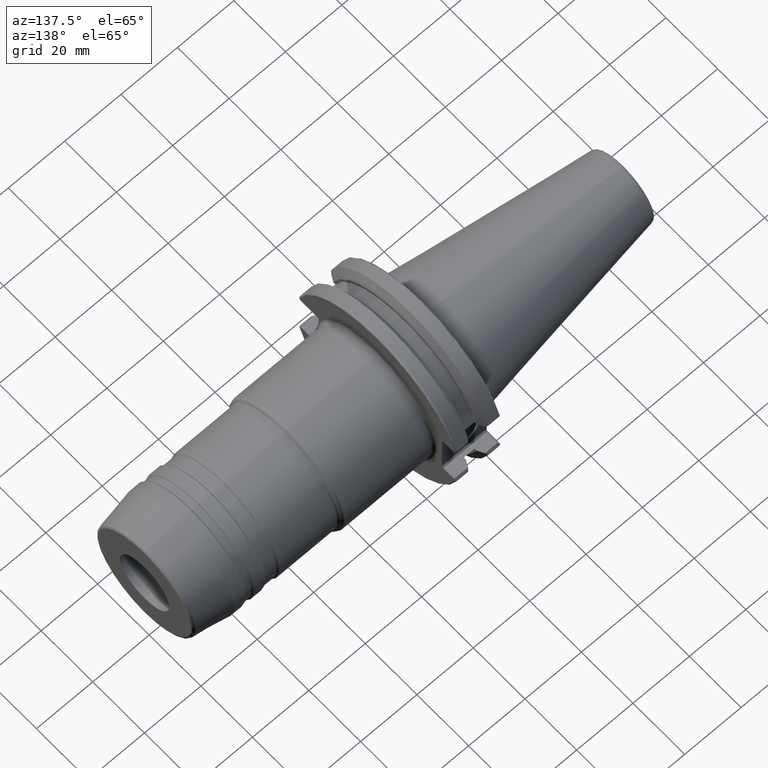
[diagram: clean part render]
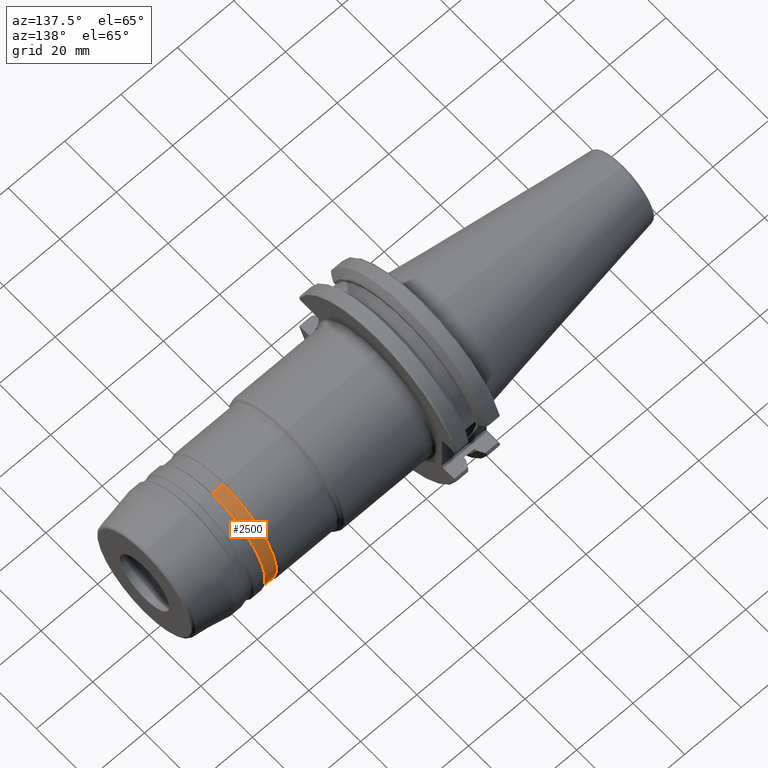
[diagram: same view with one face highlighted and labeled with its STEP entity id]
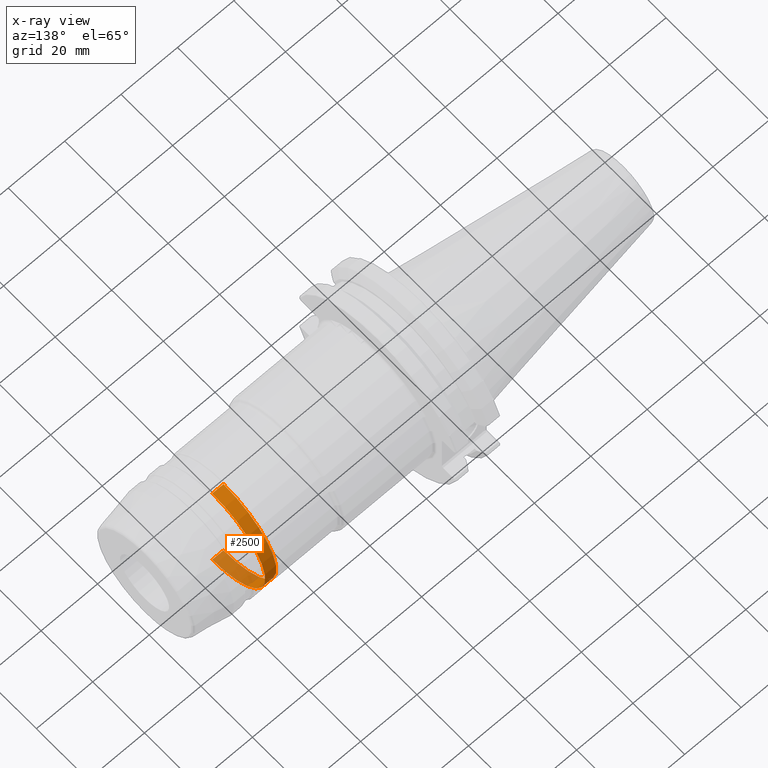
[diagram: x-ray of the same camera — body ghosted, the highlighted face saturated]
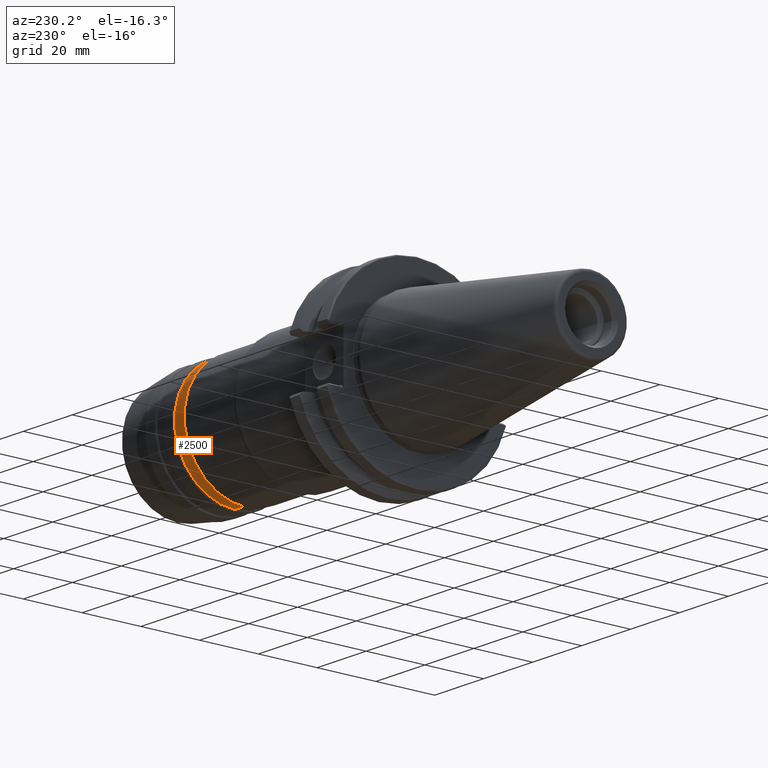
[diagram: same view with one face highlighted and labeled with its STEP entity id]
A machine part, auxiliary view. The second image highlights one B-rep face of the part: STEP entity #2500.
The next image is the same camera in x-ray: the body ghosted, the highlighted face saturated — about 28% of this face is hidden behind the body in this view.
A second angle (auxiliary view) of the same face is appended — the face is thin or edge-on in the first view.
In plain terms, the highlighted cylindrical surface (partial cylindrical patch) has radius 20.5 mm, axis along (1, 0, 0).
Its self-contained STEP definition (entity closure, byte-faithful):
#369=CARTESIAN_POINT('',(7.3625E1,0.E0,0.E0));
#370=DIRECTION('',(1.E0,0.E0,0.E0));
#371=DIRECTION('',(0.E0,0.E0,-1.E0));
#372=AXIS2_PLACEMENT_3D('',#369,#370,#371);
#389=DIRECTION('',(-1.E0,0.E0,0.E0));
#390=VECTOR('',#389,4.E0);
#391=CARTESIAN_POINT('',(7.7625E1,0.E0,-2.05E1));
#392=LINE('',#391,#390);
#393=DIRECTION('',(-1.E0,0.E0,0.E0));
#394=VECTOR('',#393,4.E0);
#395=CARTESIAN_POINT('',(7.7625E1,0.E0,2.05E1));
#396=LINE('',#395,#394);
#402=CARTESIAN_POINT('',(7.7625E1,0.E0,0.E0));
#403=DIRECTION('',(1.E0,0.E0,0.E0));
#404=DIRECTION('',(0.E0,0.E0,-1.E0));
#405=AXIS2_PLACEMENT_3D('',#402,#403,#404);
#1786=CARTESIAN_POINT('',(7.7625E1,0.E0,-2.05E1));
#1787=VERTEX_POINT('',#1786);
#1788=CARTESIAN_POINT('',(7.3625E1,0.E0,-2.05E1));
#1789=VERTEX_POINT('',#1788);
#1848=CARTESIAN_POINT('',(7.7625E1,0.E0,2.05E1));
#1849=VERTEX_POINT('',#1848);
#1850=CARTESIAN_POINT('',(7.3625E1,0.E0,2.05E1));
#1851=VERTEX_POINT('',#1850);
#2488=CARTESIAN_POINT('',(1.49475E1,0.E0,0.E0));
#2489=DIRECTION('',(1.E0,0.E0,0.E0));
#2490=DIRECTION('',(0.E0,0.E0,1.E0));
#2491=AXIS2_PLACEMENT_3D('',#2488,#2489,#2490);
#2492=CYLINDRICAL_SURFACE('',#2491,2.05E1);
#2493=ORIENTED_EDGE('',*,*,#2478,.F.);
#2495=ORIENTED_EDGE('',*,*,#2494,.T.);
#2496=ORIENTED_EDGE('',*,*,#2481,.T.);
#2497=ORIENTED_EDGE('',*,*,#2452,.F.);
#2498=EDGE_LOOP('',(#2493,#2495,#2496,#2497));
#2499=FACE_OUTER_BOUND('',#2498,.F.);
#2500=ADVANCED_FACE('',(#2499),#2492,.T.);
#373=CIRCLE('',#372,2.05E1);
#406=CIRCLE('',#405,2.05E1);
#2452=EDGE_CURVE('',#1789,#1851,#373,.T.);
#2478=EDGE_CURVE('',#1787,#1789,#392,.T.);
#2481=EDGE_CURVE('',#1849,#1851,#396,.T.);
#2494=EDGE_CURVE('',#1787,#1849,#406,.T.);